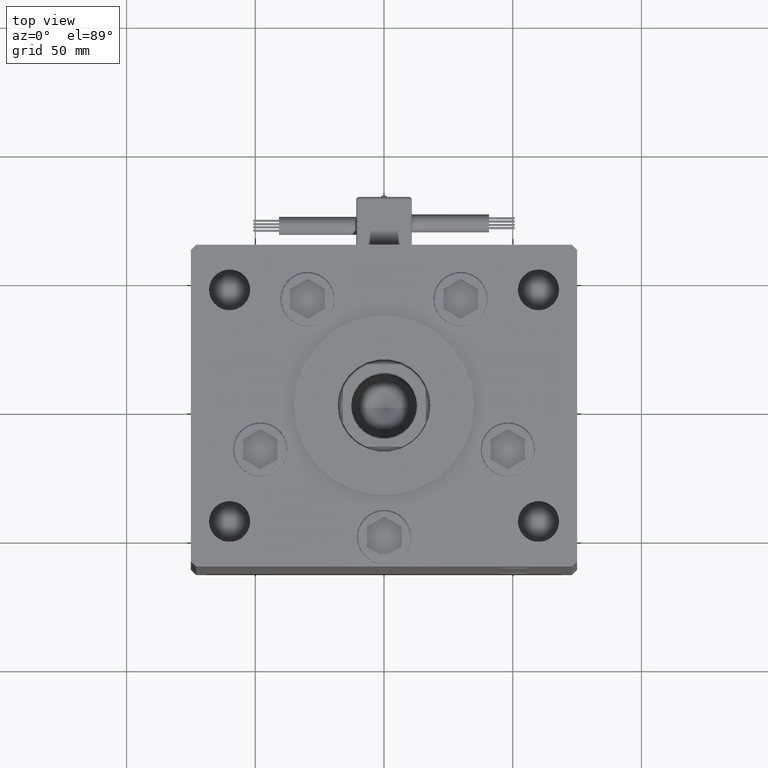
[diagram: clean part render]
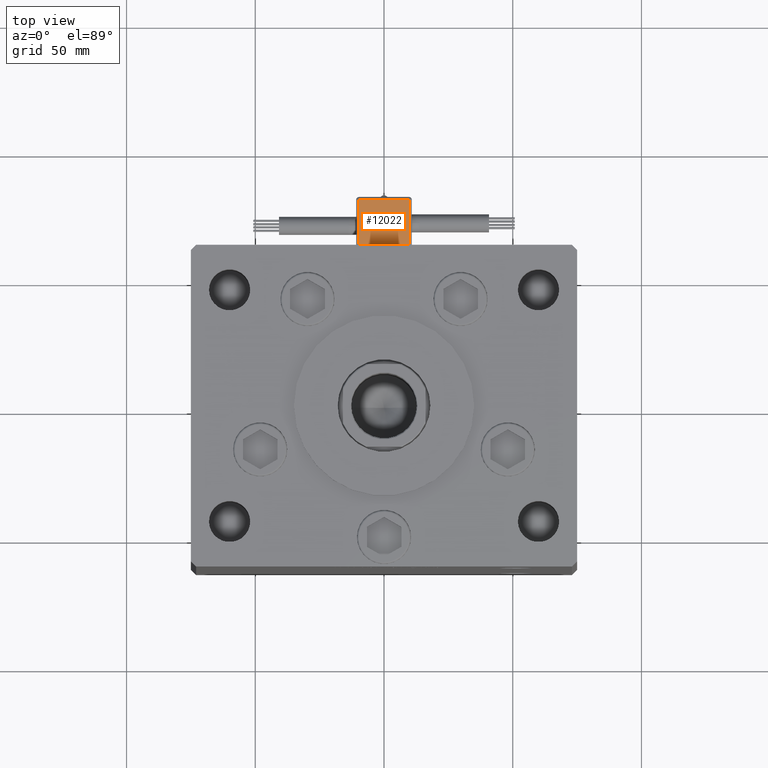
[diagram: same view with one face highlighted and labeled with its STEP entity id]
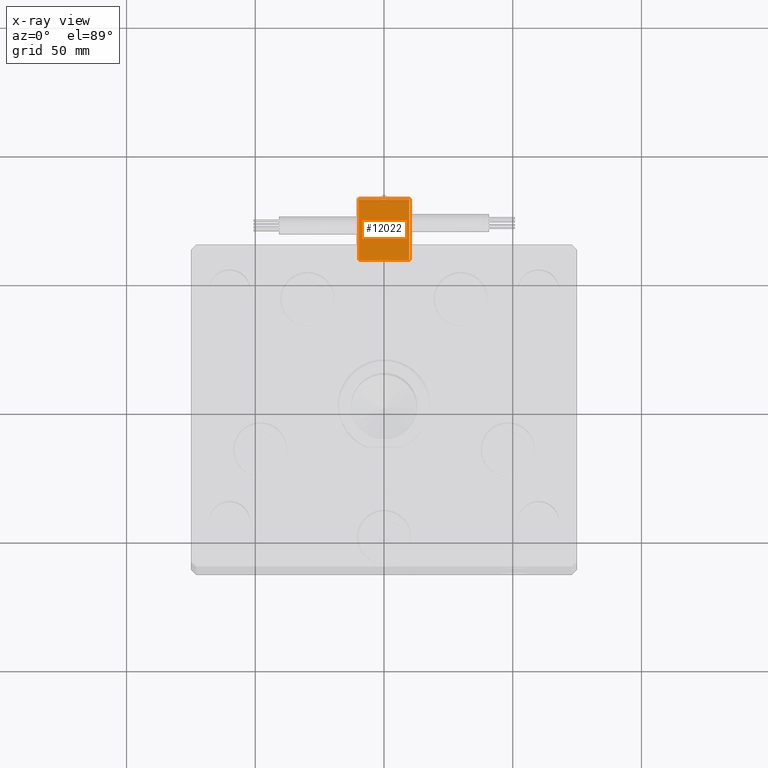
[diagram: x-ray of the same camera — body ghosted, the highlighted face saturated]
A machine part, top view. The second image highlights one B-rep face of the part: STEP entity #12022.
The next image is the same camera in x-ray: the body ghosted, the highlighted face saturated — about 0% of this face is hidden behind the body in this view.
In plain terms, the highlighted planar face has unit normal (0, 0, -1).
Its self-contained STEP definition (entity closure, byte-faithful):
#490 = VERTEX_POINT ( 'NONE', #7812 ) ;
#1948 = DIRECTION ( 'NONE',  ( -1.000000000000000000, 0.000000000000000000, -2.220446049250000002E-16 ) ) ;
#3008 = CARTESIAN_POINT ( 'NONE',  ( 9.799999999999998934, 50.50000000000000000, -25.00000000000000000 ) ) ;
#4658 = VECTOR ( 'NONE', #34496, 1000.000000000000000 ) ;
#6692 = VERTEX_POINT ( 'NONE', #44783 ) ;
#7632 = EDGE_CURVE ( 'NONE', #490, #6692, #30154, .T. ) ;
#7812 = CARTESIAN_POINT ( 'NONE',  ( -9.799999999999998934, 27.00000000000000000, -25.00000000000000000 ) ) ;
#12022 = ADVANCED_FACE ( 'NONE', ( #28087 ), #12184, .F. ) ;
#12184 = PLANE ( 'NONE',  #33419 ) ;
#15599 = LINE ( 'NONE', #45413, #36672 ) ;
#16352 = DIRECTION ( 'NONE',  ( 2.220446049250000002E-16, 1.400000000000000069E-16, -1.000000000000000000 ) ) ;
#17190 = VECTOR ( 'NONE', #21790, 1000.000000000000000 ) ;
#17471 = CARTESIAN_POINT ( 'NONE',  ( 9.799999999999998934, 51.50000000000000000, -25.00000000000000000 ) ) ;
#19116 = VECTOR ( 'NONE', #21505, 1000.000000000000000 ) ;
#21447 = VERTEX_POINT ( 'NONE', #3008 ) ;
#21505 = DIRECTION ( 'NONE',  ( 1.000000000000000000, 0.000000000000000000, 2.220446049250000002E-16 ) ) ;
#21790 = DIRECTION ( 'NONE',  ( 3.108624468950000014E-32, -1.000000000000000000, -1.400000000000000069E-16 ) ) ;
#23654 = ORIENTED_EDGE ( 'NONE', *, *, #50111, .T. ) ;
#26415 = LINE ( 'NONE', #17471, #4658 ) ;
#27222 = EDGE_LOOP ( 'NONE', ( #23654, #38988, #33403, #42002 ) ) ;
#28087 = FACE_OUTER_BOUND ( 'NONE', #27222, .T. ) ;
#30154 = LINE ( 'NONE', #42689, #19116 ) ;
#33028 = CARTESIAN_POINT ( 'NONE',  ( -9.799999999999998934, 51.50000000000000000, -25.00000000000000000 ) ) ;
#33403 = ORIENTED_EDGE ( 'NONE', *, *, #35997, .T. ) ;
#33419 = AXIS2_PLACEMENT_3D ( 'NONE', #53997, #16352, #49239 ) ;
#34496 = DIRECTION ( 'NONE',  ( -3.108624468950000014E-32, 1.000000000000000000, 1.400000000000000069E-16 ) ) ;
#35689 = EDGE_CURVE ( 'NONE', #21447, #53533, #15599, .T. ) ;
#35997 = EDGE_CURVE ( 'NONE', #6692, #21447, #26415, .T. ) ;
#36672 = VECTOR ( 'NONE', #1948, 1000.000000000000000 ) ;
#38988 = ORIENTED_EDGE ( 'NONE', *, *, #7632, .T. ) ;
#40644 = CARTESIAN_POINT ( 'NONE',  ( -9.799999999999998934, 50.50000000000000000, -25.00000000000000000 ) ) ;
#42002 = ORIENTED_EDGE ( 'NONE', *, *, #35689, .T. ) ;
#42689 = CARTESIAN_POINT ( 'NONE',  ( 10.80000000000000071, 27.00000000000000000, -25.00000000000000000 ) ) ;
#44783 = CARTESIAN_POINT ( 'NONE',  ( 9.799999999999998934, 27.00000000000000000, -25.00000000000000000 ) ) ;
#45413 = CARTESIAN_POINT ( 'NONE',  ( 10.80000000000000071, 50.50000000000000000, -25.00000000000000000 ) ) ;
#46103 = LINE ( 'NONE', #33028, #17190 ) ;
#49239 = DIRECTION ( 'NONE',  ( 0.000000000000000000, -1.000000000000000000, -1.400000000000000069E-16 ) ) ;
#50111 = EDGE_CURVE ( 'NONE', #53533, #490, #46103, .T. ) ;
#53533 = VERTEX_POINT ( 'NONE', #40644 ) ;
#53997 = CARTESIAN_POINT ( 'NONE',  ( 10.80000000000000071, 51.50000000000000000, -25.00000000000000000 ) ) ;